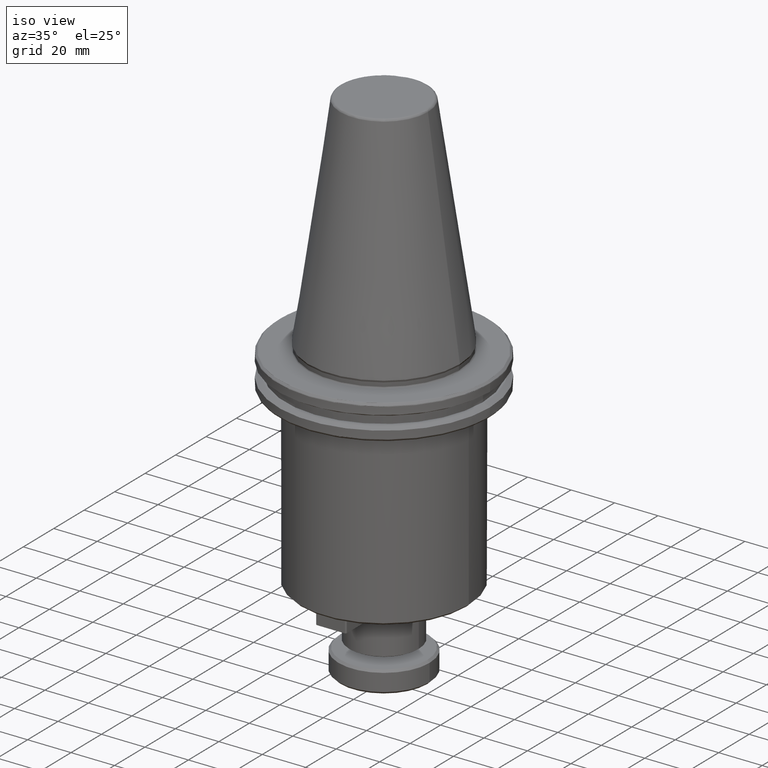
[diagram: clean part render]
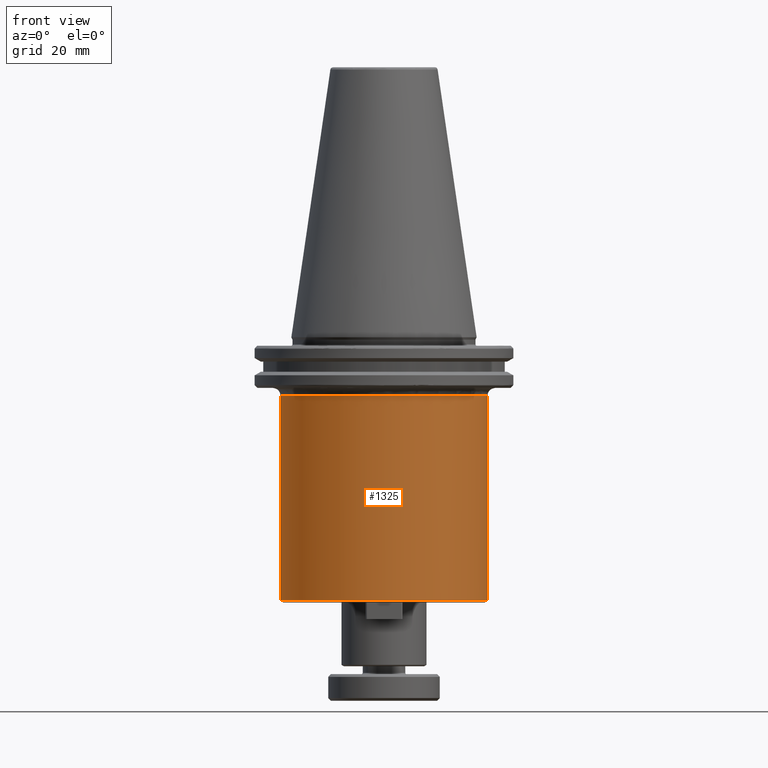
[diagram: tour spotlight — one face highlighted and labeled with its STEP entity id]
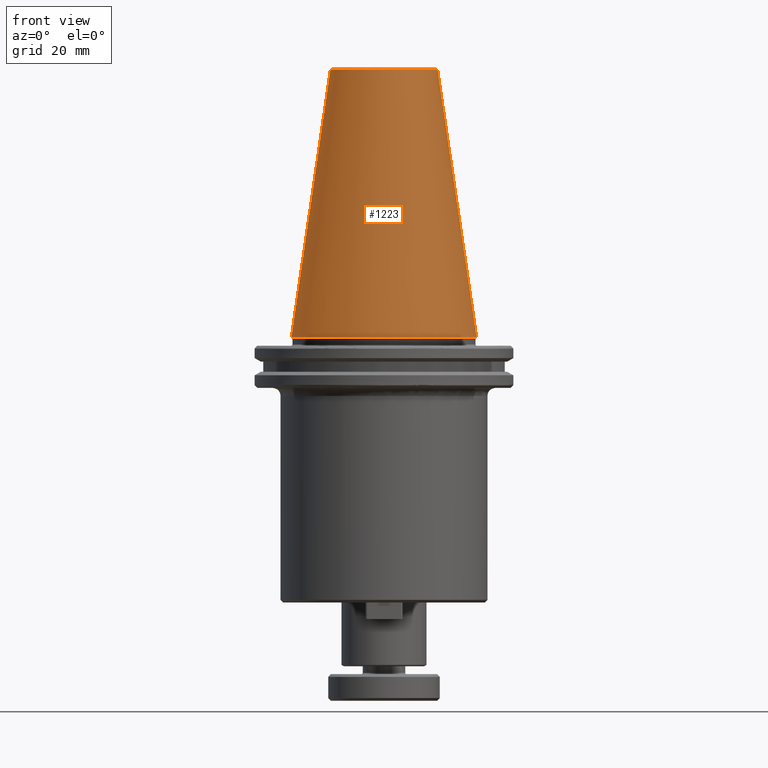
[diagram: tour spotlight — one face highlighted and labeled with its STEP entity id]
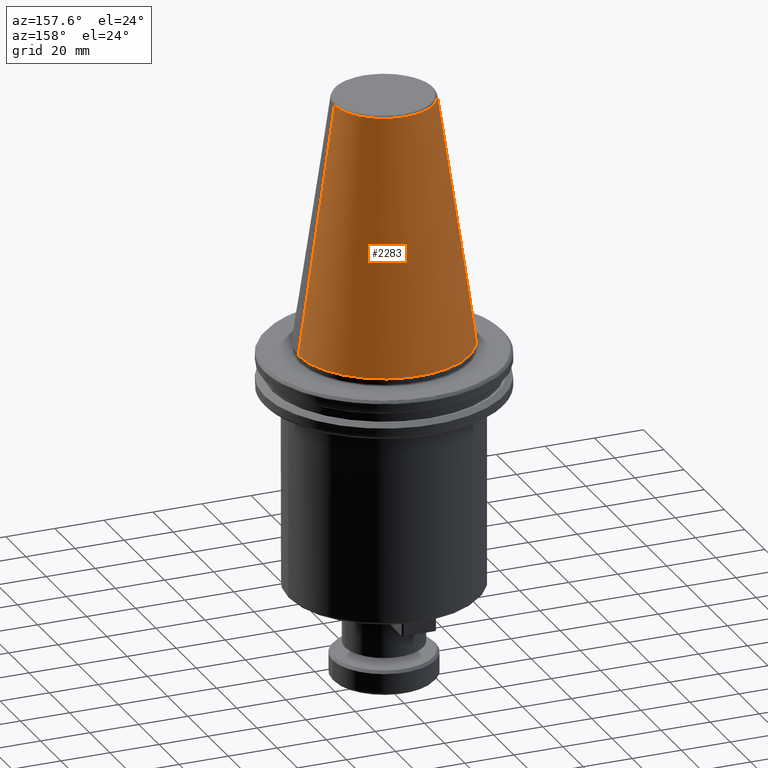
[diagram: tour spotlight — one face highlighted and labeled with its STEP entity id]
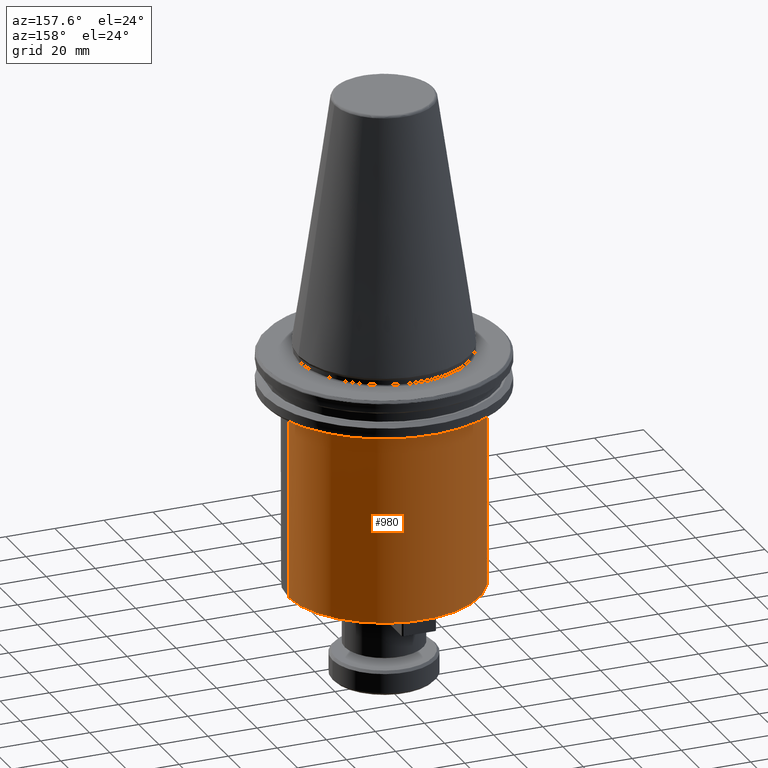
[diagram: tour spotlight — one face highlighted and labeled with its STEP entity id]
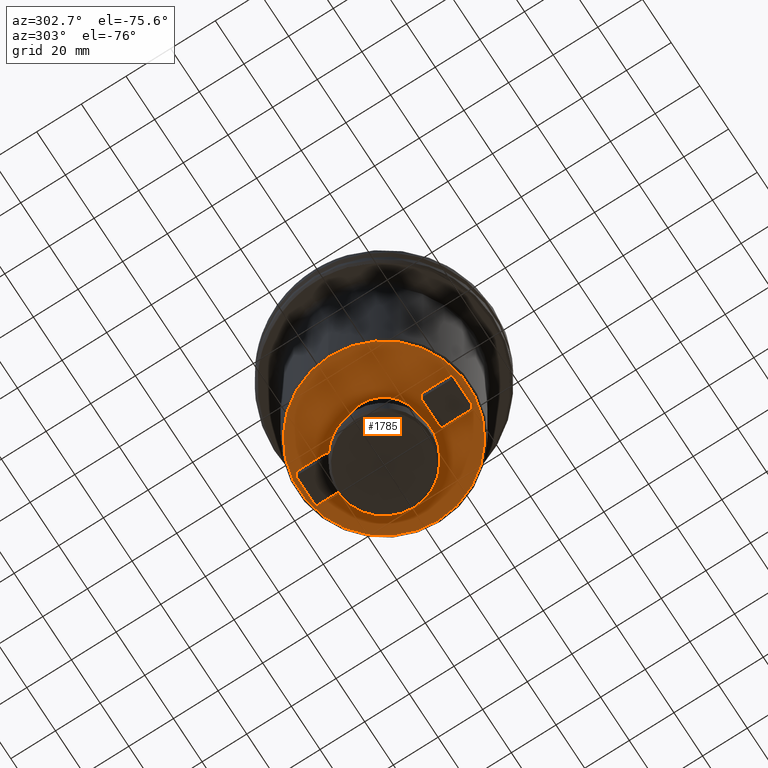
[diagram: tour spotlight — one face highlighted and labeled with its STEP entity id]
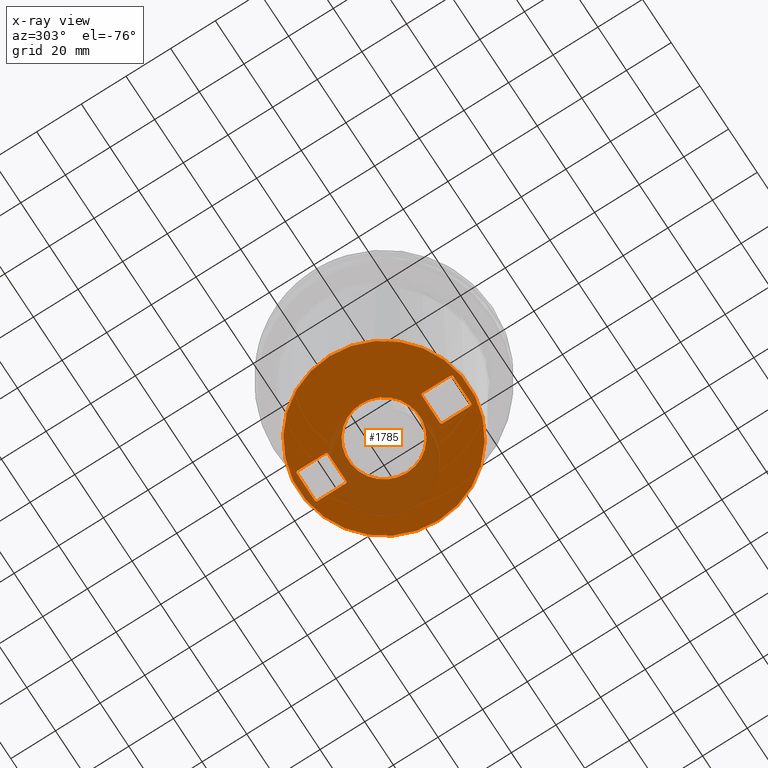
[diagram: x-ray of the same camera — body ghosted, this tour face saturated]
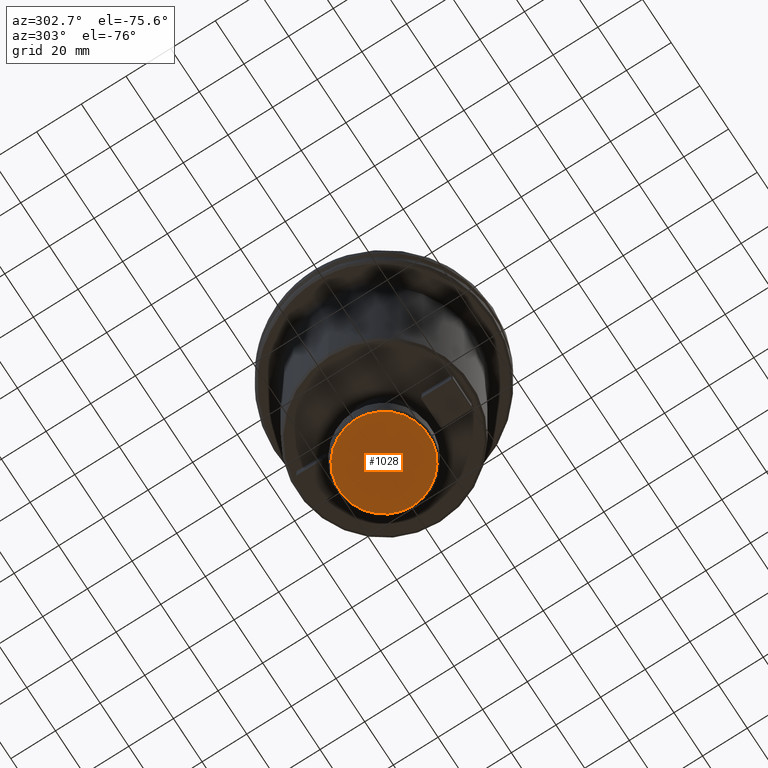
[diagram: tour spotlight — one face highlighted and labeled with its STEP entity id]
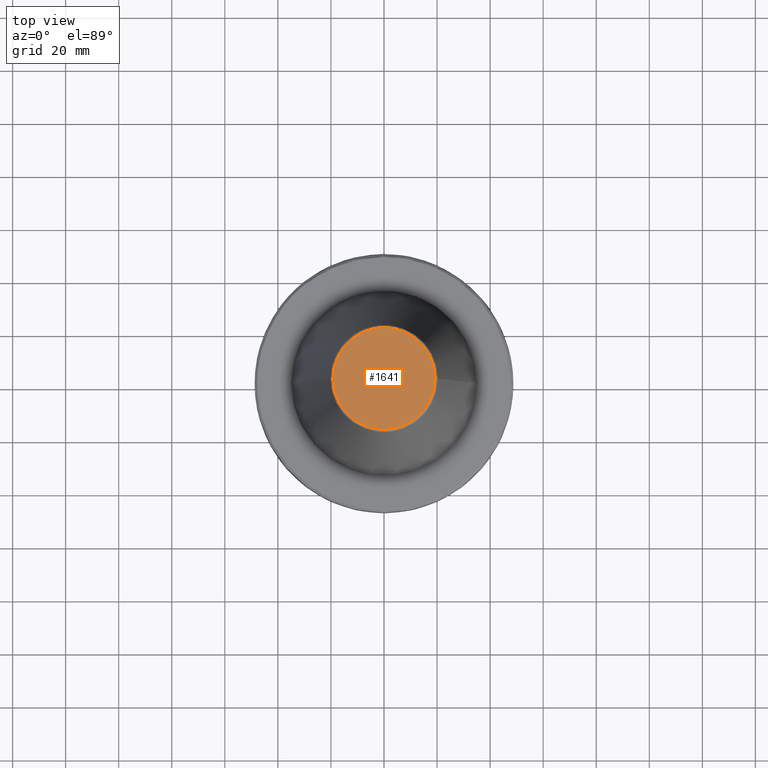
[diagram: tour spotlight — one face highlighted and labeled with its STEP entity id]
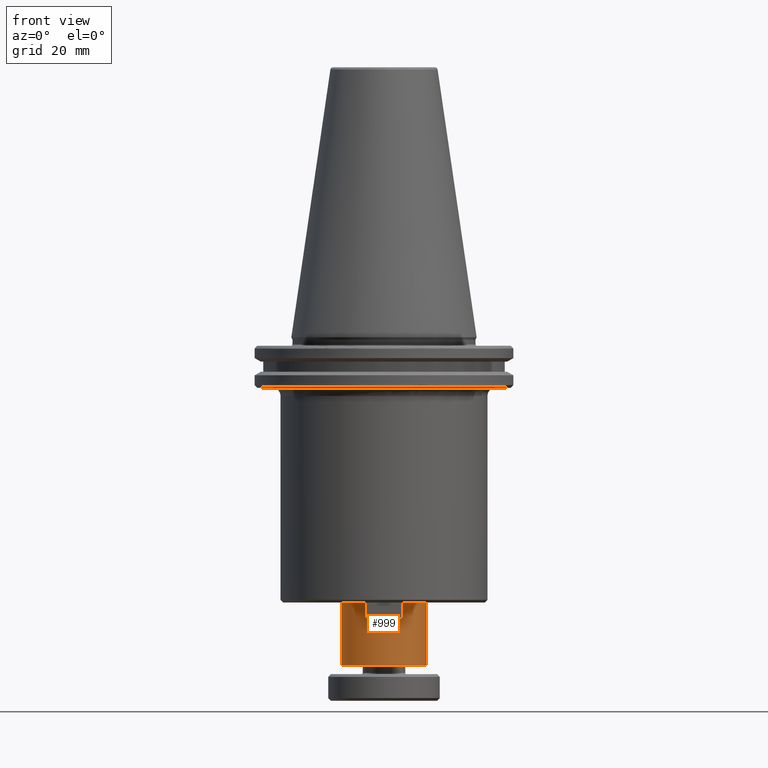
[diagram: tour spotlight — one face highlighted and labeled with its STEP entity id]
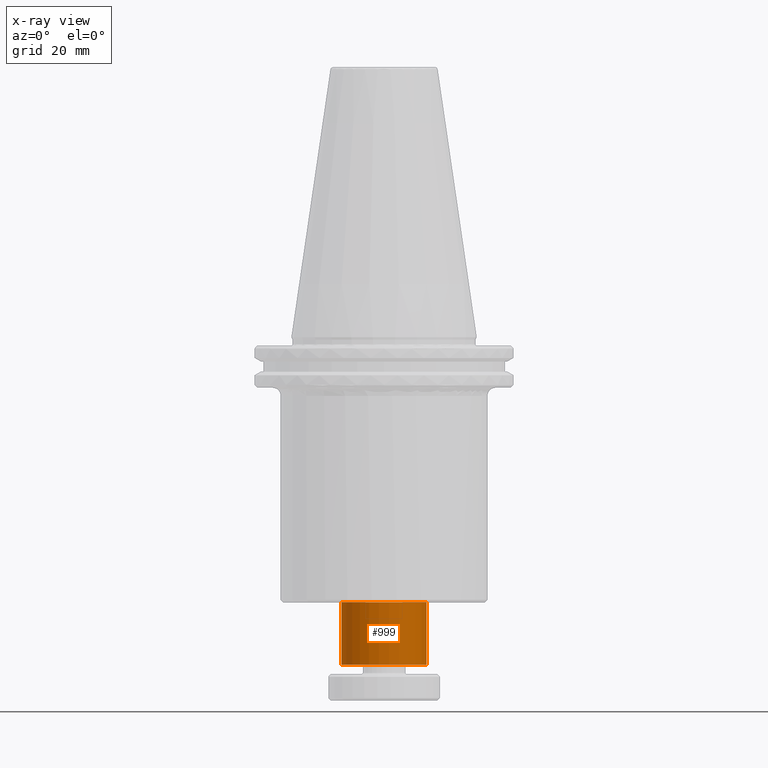
[diagram: x-ray of the same camera — body ghosted, this tour face saturated]
A machine part: a face-by-face anatomy tour. The part has 102 B-rep faces; the first image is the clean iso view, then the 8 largest visible faces are spotlighted one at a time (largest first), each with its STEP entity span.

Face 1 — front view, entity #1325. In plain terms, the highlighted cylindrical surface (partial cylindrical patch) has radius 39 mm, axis along (0, 0, 1).
Definition (entity closure, byte-faithful):
#214 = AXIS2_PLACEMENT_3D ( 'NONE', #2904, #2786, #3258 ) ;
#220 = DIRECTION ( 'NONE',  ( -1.000000000000000000, 0.0000000000000000000, 0.0000000000000000000 ) ) ;
#223 = DIRECTION ( 'NONE',  ( 0.0000000000000000000, 0.0000000000000000000, -1.000000000000000000 ) ) ;
#241 = CARTESIAN_POINT ( 'NONE',  ( 0.0000000000000000000, 0.0000000000000000000, -22.10000000000000500 ) ) ;
#343 = EDGE_CURVE ( 'NONE', #617, #1266, #4227, .T. ) ;
#392 = DIRECTION ( 'NONE',  ( 1.000000000000000000, 0.0000000000000000000, 0.0000000000000000000 ) ) ;
#405 = DIRECTION ( 'NONE',  ( 0.0000000000000000000, 0.0000000000000000000, -1.000000000000000000 ) ) ;
#617 = VERTEX_POINT ( 'NONE', #4277 ) ;
#706 = LINE ( 'NONE', #3058, #1088 ) ;
#791 = AXIS2_PLACEMENT_3D ( 'NONE', #2489, #405, #2854 ) ;
#835 = ORIENTED_EDGE ( 'NONE', *, *, #2126, .T. ) ;
#850 = CARTESIAN_POINT ( 'NONE',  ( -37.69999999999999600, -9.985489472229200900, -22.10000000000000500 ) ) ;
#1021 = ORIENTED_EDGE ( 'NONE', *, *, #343, .T. ) ;
#1088 = VECTOR ( 'NONE', #4374, 1000.000000000000000 ) ;
#1103 = DIRECTION ( 'NONE',  ( 1.000000000000000000, 0.0000000000000000000, 0.0000000000000000000 ) ) ;
#1116 = VERTEX_POINT ( 'NONE', #850 ) ;
#1117 = DIRECTION ( 'NONE',  ( -0.0000000000000000000, -0.0000000000000000000, -1.000000000000000000 ) ) ;
#1119 = CARTESIAN_POINT ( 'NONE',  ( 0.0000000000000000000, 0.0000000000000000000, -22.10000000000000500 ) ) ;
#1205 = EDGE_LOOP ( 'NONE', ( #3059, #1021, #2103, #835, #4224, #2544 ) ) ;
#1208 = CARTESIAN_POINT ( 'NONE',  ( -39.00000000000000000, 4.776122516674677900E-015, -22.10000000000000500 ) ) ;
#1266 = VERTEX_POINT ( 'NONE', #2108 ) ;
#1325 = ADVANCED_FACE ( 'NONE', ( #2048 ), #2101, .T. ) ;
#1342 = EDGE_CURVE ( 'NONE', #1116, #3607, #2091, .T. ) ;
#1555 = AXIS2_PLACEMENT_3D ( 'NONE', #1119, #1117, #1103 ) ;
#1702 = VERTEX_POINT ( 'NONE', #4246 ) ;
#1742 = VECTOR ( 'NONE', #2590, 1000.000000000000000 ) ;
#2004 = EDGE_CURVE ( 'NONE', #1702, #1116, #3627, .T. ) ;
#2048 = FACE_OUTER_BOUND ( 'NONE', #1205, .T. ) ;
#2091 = CIRCLE ( 'NONE', #791, 39.00000000000000000 ) ;
#2101 = CYLINDRICAL_SURFACE ( 'NONE', #3099, 39.00000000000000000 ) ;
#2103 = ORIENTED_EDGE ( 'NONE', *, *, #4222, .T. ) ;
#2108 = CARTESIAN_POINT ( 'NONE',  ( 39.00000000000000000, 0.0000000000000000000, -99.00000000000000000 ) ) ;
#2126 = EDGE_CURVE ( 'NONE', #3963, #1702, #4102, .T. ) ;
#2470 = CARTESIAN_POINT ( 'NONE',  ( 0.0000000000000000000, 0.0000000000000000000, 0.0000000000000000000 ) ) ;
#2489 = CARTESIAN_POINT ( 'NONE',  ( 0.0000000000000000000, 0.0000000000000000000, -22.10000000000000500 ) ) ;
#2544 = ORIENTED_EDGE ( 'NONE', *, *, #1342, .T. ) ;
#2590 = DIRECTION ( 'NONE',  ( 0.0000000000000000000, 0.0000000000000000000, 1.000000000000000000 ) ) ;
#2786 = DIRECTION ( 'NONE',  ( 0.0000000000000000000, 0.0000000000000000000, 1.000000000000000000 ) ) ;
#2851 = CARTESIAN_POINT ( 'NONE',  ( 39.00000000000000000, 0.0000000000000000000, -22.10000000000000500 ) ) ;
#2854 = DIRECTION ( 'NONE',  ( -1.000000000000000000, 0.0000000000000000000, 0.0000000000000000000 ) ) ;
#2904 = CARTESIAN_POINT ( 'NONE',  ( 0.0000000000000000000, 0.0000000000000000000, -99.00000000000000000 ) ) ;
#3058 = CARTESIAN_POINT ( 'NONE',  ( 39.00000000000000000, 0.0000000000000000000, 0.0000000000000000000 ) ) ;
#3059 = ORIENTED_EDGE ( 'NONE', *, *, #3364, .F. ) ;
#3099 = AXIS2_PLACEMENT_3D ( 'NONE', #2470, #4144, #392 ) ;
#3258 = DIRECTION ( 'NONE',  ( 1.000000000000000000, 0.0000000000000000000, 0.0000000000000000000 ) ) ;
#3293 = CARTESIAN_POINT ( 'NONE',  ( -39.00000000000000000, 4.776122516674677900E-015, 0.0000000000000000000 ) ) ;
#3364 = EDGE_CURVE ( 'NONE', #617, #3607, #4136, .T. ) ;
#3607 = VERTEX_POINT ( 'NONE', #1208 ) ;
#3627 = CIRCLE ( 'NONE', #1555, 39.00000000000000000 ) ;
#3812 = AXIS2_PLACEMENT_3D ( 'NONE', #241, #223, #220 ) ;
#3963 = VERTEX_POINT ( 'NONE', #2851 ) ;
#4102 = CIRCLE ( 'NONE', #3812, 39.00000000000000000 ) ;
#4136 = LINE ( 'NONE', #3293, #1742 ) ;
#4144 = DIRECTION ( 'NONE',  ( 0.0000000000000000000, 0.0000000000000000000, 1.000000000000000000 ) ) ;
#4222 = EDGE_CURVE ( 'NONE', #1266, #3963, #706, .T. ) ;
#4224 = ORIENTED_EDGE ( 'NONE', *, *, #2004, .T. ) ;
#4227 = CIRCLE ( 'NONE', #214, 39.00000000000000000 ) ;
#4246 = CARTESIAN_POINT ( 'NONE',  ( 36.82224191979624800, -12.85000000000000300, -22.10000000000000500 ) ) ;
#4277 = CARTESIAN_POINT ( 'NONE',  ( -39.00000000000000000, 4.776122516674677900E-015, -99.00000000000000000 ) ) ;
#4374 = DIRECTION ( 'NONE',  ( 0.0000000000000000000, 0.0000000000000000000, 1.000000000000000000 ) ) ;

Face 2 — front view, entity #1223. In plain terms, the highlighted conical surface has half-angle 8.297 deg.
Definition (entity closure, byte-faithful):
#129 = CARTESIAN_POINT ( 'NONE',  ( -34.92499999999999700, 0.0000000000000000000, -1.387778780781445700E-014 ) ) ;
#137 = CARTESIAN_POINT ( 'NONE',  ( 0.0000000000000000000, 0.0000000000000000000, 0.0000000000000000000 ) ) ;
#185 = CARTESIAN_POINT ( 'NONE',  ( 34.92499999999999700, 4.277078946022130900E-015, -1.387778780781445700E-014 ) ) ;
#205 = VERTEX_POINT ( 'NONE', #1721 ) ;
#246 = LINE ( 'NONE', #185, #721 ) ;
#352 = CIRCLE ( 'NONE', #2482, 34.92500000000000400 ) ;
#363 = ORIENTED_EDGE ( 'NONE', *, *, #1080, .T. ) ;
#407 = EDGE_CURVE ( 'NONE', #205, #1794, #1806, .T. ) ;
#492 = DIRECTION ( 'NONE',  ( 1.000000000000000000, 0.0000000000000000000, 6.250708212905391100E-017 ) ) ;
#546 = EDGE_CURVE ( 'NONE', #2553, #1582, #352, .T. ) ;
#634 = ORIENTED_EDGE ( 'NONE', *, *, #407, .T. ) ;
#694 = EDGE_CURVE ( 'NONE', #205, #2553, #246, .T. ) ;
#721 = VECTOR ( 'NONE', #1557, 1000.000000000000000 ) ;
#790 = ORIENTED_EDGE ( 'NONE', *, *, #694, .F. ) ;
#890 = CARTESIAN_POINT ( 'NONE',  ( 34.92499999999999700, 4.277078946022130900E-015, 0.0000000000000000000 ) ) ;
#996 = EDGE_LOOP ( 'NONE', ( #790, #634, #363, #2439 ) ) ;
#1080 = EDGE_CURVE ( 'NONE', #1794, #1582, #1375, .T. ) ;
#1223 = ADVANCED_FACE ( 'NONE', ( #1538 ), #1855, .T. ) ;
#1375 = LINE ( 'NONE', #129, #1429 ) ;
#1429 = VECTOR ( 'NONE', #1513, 1000.000000000000000 ) ;
#1500 = DIRECTION ( 'NONE',  ( -1.000000000000000000, 0.0000000000000000000, 0.0000000000000000000 ) ) ;
#1513 = DIRECTION ( 'NONE',  ( -0.1443082272673069400, 0.0000000000000000000, -0.9895327864921743500 ) ) ;
#1525 = AXIS2_PLACEMENT_3D ( 'NONE', #1992, #2587, #1500 ) ;
#1538 = FACE_OUTER_BOUND ( 'NONE', #996, .T. ) ;
#1557 = DIRECTION ( 'NONE',  ( 0.1443082272673069400, 1.767266086135362400E-017, -0.9895327864921743500 ) ) ;
#1582 = VERTEX_POINT ( 'NONE', #2620 ) ;
#1721 = CARTESIAN_POINT ( 'NONE',  ( 20.21110778703758000, 3.376112895941951000E-015, 100.8943082272673000 ) ) ;
#1794 = VERTEX_POINT ( 'NONE', #3264 ) ;
#1806 = CIRCLE ( 'NONE', #1525, 20.21110778703758000 ) ;
#1855 = CONICAL_SURFACE ( 'NONE', #3080, 34.92499999999999700, 0.1448138465474189400 ) ;
#1992 = CARTESIAN_POINT ( 'NONE',  ( 0.0000000000000000000, 0.0000000000000000000, 100.8943082272673000 ) ) ;
#2316 = DIRECTION ( 'NONE',  ( -1.000000000000000000, 0.0000000000000000000, 0.0000000000000000000 ) ) ;
#2439 = ORIENTED_EDGE ( 'NONE', *, *, #546, .F. ) ;
#2482 = AXIS2_PLACEMENT_3D ( 'NONE', #137, #2575, #492 ) ;
#2553 = VERTEX_POINT ( 'NONE', #890 ) ;
#2575 = DIRECTION ( 'NONE',  ( -0.0000000000000000000, -0.0000000000000000000, -1.000000000000000000 ) ) ;
#2587 = DIRECTION ( 'NONE',  ( 0.0000000000000000000, 0.0000000000000000000, -1.000000000000000000 ) ) ;
#2620 = CARTESIAN_POINT ( 'NONE',  ( -34.92499999999999700, 0.0000000000000000000, 0.0000000000000000000 ) ) ;
#3080 = AXIS2_PLACEMENT_3D ( 'NONE', #3694, #4024, #2316 ) ;
#3264 = CARTESIAN_POINT ( 'NONE',  ( -20.21110778703758000, 0.0000000000000000000, 100.8943082272673000 ) ) ;
#3694 = CARTESIAN_POINT ( 'NONE',  ( 0.0000000000000000000, 0.0000000000000000000, -1.387778780781445700E-014 ) ) ;
#4024 = DIRECTION ( 'NONE',  ( 0.0000000000000000000, 0.0000000000000000000, -1.000000000000000000 ) ) ;

Face 3 — auxiliary view, entity #2283. In plain terms, the highlighted conical surface has half-angle 8.297 deg.
Definition (entity closure, byte-faithful):
#129 = CARTESIAN_POINT ( 'NONE',  ( -34.92499999999999700, 0.0000000000000000000, -1.387778780781445700E-014 ) ) ;
#170 = DIRECTION ( 'NONE',  ( 0.0000000000000000000, 0.0000000000000000000, -1.000000000000000000 ) ) ;
#185 = CARTESIAN_POINT ( 'NONE',  ( 34.92499999999999700, 4.277078946022130900E-015, -1.387778780781445700E-014 ) ) ;
#205 = VERTEX_POINT ( 'NONE', #1721 ) ;
#246 = LINE ( 'NONE', #185, #721 ) ;
#567 = ORIENTED_EDGE ( 'NONE', *, *, #694, .T. ) ;
#694 = EDGE_CURVE ( 'NONE', #205, #2553, #246, .T. ) ;
#721 = VECTOR ( 'NONE', #1557, 1000.000000000000000 ) ;
#890 = CARTESIAN_POINT ( 'NONE',  ( 34.92499999999999700, 4.277078946022130900E-015, 0.0000000000000000000 ) ) ;
#1080 = EDGE_CURVE ( 'NONE', #1794, #1582, #1375, .T. ) ;
#1276 = AXIS2_PLACEMENT_3D ( 'NONE', #3653, #1553, #3979 ) ;
#1375 = LINE ( 'NONE', #129, #1429 ) ;
#1429 = VECTOR ( 'NONE', #1513, 1000.000000000000000 ) ;
#1513 = DIRECTION ( 'NONE',  ( -0.1443082272673069400, 0.0000000000000000000, -0.9895327864921743500 ) ) ;
#1540 = CARTESIAN_POINT ( 'NONE',  ( 0.0000000000000000000, 0.0000000000000000000, -1.387778780781445700E-014 ) ) ;
#1553 = DIRECTION ( 'NONE',  ( -0.0000000000000000000, -0.0000000000000000000, -1.000000000000000000 ) ) ;
#1557 = DIRECTION ( 'NONE',  ( 0.1443082272673069400, 1.767266086135362400E-017, -0.9895327864921743500 ) ) ;
#1582 = VERTEX_POINT ( 'NONE', #2620 ) ;
#1662 = DIRECTION ( 'NONE',  ( 0.0000000000000000000, 0.0000000000000000000, -1.000000000000000000 ) ) ;
#1721 = CARTESIAN_POINT ( 'NONE',  ( 20.21110778703758000, 3.376112895941951000E-015, 100.8943082272673000 ) ) ;
#1794 = VERTEX_POINT ( 'NONE', #3264 ) ;
#2082 = FACE_OUTER_BOUND ( 'NONE', #3868, .T. ) ;
#2281 = CIRCLE ( 'NONE', #3973, 20.21110778703758000 ) ;
#2283 = ADVANCED_FACE ( 'NONE', ( #2082 ), #4359, .T. ) ;
#2553 = VERTEX_POINT ( 'NONE', #890 ) ;
#2620 = CARTESIAN_POINT ( 'NONE',  ( -34.92499999999999700, 0.0000000000000000000, 0.0000000000000000000 ) ) ;
#2697 = DIRECTION ( 'NONE',  ( -1.000000000000000000, 0.0000000000000000000, 0.0000000000000000000 ) ) ;
#3196 = ORIENTED_EDGE ( 'NONE', *, *, #3422, .F. ) ;
#3251 = ORIENTED_EDGE ( 'NONE', *, *, #1080, .F. ) ;
#3264 = CARTESIAN_POINT ( 'NONE',  ( -20.21110778703758000, 0.0000000000000000000, 100.8943082272673000 ) ) ;
#3285 = AXIS2_PLACEMENT_3D ( 'NONE', #1540, #170, #2697 ) ;
#3422 = EDGE_CURVE ( 'NONE', #1582, #2553, #4032, .T. ) ;
#3653 = CARTESIAN_POINT ( 'NONE',  ( 0.0000000000000000000, 0.0000000000000000000, 0.0000000000000000000 ) ) ;
#3761 = CARTESIAN_POINT ( 'NONE',  ( 0.0000000000000000000, 0.0000000000000000000, 100.8943082272673000 ) ) ;
#3868 = EDGE_LOOP ( 'NONE', ( #4431, #567, #3196, #3251 ) ) ;
#3973 = AXIS2_PLACEMENT_3D ( 'NONE', #3761, #1662, #4072 ) ;
#3979 = DIRECTION ( 'NONE',  ( 1.000000000000000000, 0.0000000000000000000, 6.250708212905391100E-017 ) ) ;
#4032 = CIRCLE ( 'NONE', #1276, 34.92500000000000400 ) ;
#4072 = DIRECTION ( 'NONE',  ( -1.000000000000000000, 0.0000000000000000000, 0.0000000000000000000 ) ) ;
#4305 = EDGE_CURVE ( 'NONE', #1794, #205, #2281, .T. ) ;
#4359 = CONICAL_SURFACE ( 'NONE', #3285, 34.92499999999999700, 0.1448138465474189400 ) ;
#4431 = ORIENTED_EDGE ( 'NONE', *, *, #4305, .T. ) ;

Face 4 — auxiliary view, entity #980. In plain terms, the highlighted cylindrical surface (partial cylindrical patch) has radius 39 mm, axis along (0, 0, 1).
Definition (entity closure, byte-faithful):
#196 = CIRCLE ( 'NONE', #3141, 39.00000000000000000 ) ;
#444 = DIRECTION ( 'NONE',  ( 0.0000000000000000000, 0.0000000000000000000, 1.000000000000000000 ) ) ;
#494 = EDGE_CURVE ( 'NONE', #3607, #3300, #196, .T. ) ;
#617 = VERTEX_POINT ( 'NONE', #4277 ) ;
#625 = EDGE_LOOP ( 'NONE', ( #4421, #3615, #3063, #1594, #2143, #1487 ) ) ;
#706 = LINE ( 'NONE', #3058, #1088 ) ;
#710 = DIRECTION ( 'NONE',  ( 0.0000000000000000000, 0.0000000000000000000, 1.000000000000000000 ) ) ;
#794 = DIRECTION ( 'NONE',  ( 0.0000000000000000000, 0.0000000000000000000, -1.000000000000000000 ) ) ;
#935 = CARTESIAN_POINT ( 'NONE',  ( 0.0000000000000000000, 0.0000000000000000000, -22.10000000000000500 ) ) ;
#980 = ADVANCED_FACE ( 'NONE', ( #1163 ), #1256, .T. ) ;
#1088 = VECTOR ( 'NONE', #4374, 1000.000000000000000 ) ;
#1163 = FACE_OUTER_BOUND ( 'NONE', #625, .T. ) ;
#1208 = CARTESIAN_POINT ( 'NONE',  ( -39.00000000000000000, 4.776122516674677900E-015, -22.10000000000000500 ) ) ;
#1256 = CYLINDRICAL_SURFACE ( 'NONE', #3233, 39.00000000000000000 ) ;
#1266 = VERTEX_POINT ( 'NONE', #2108 ) ;
#1275 = DIRECTION ( 'NONE',  ( -1.000000000000000000, 0.0000000000000000000, 0.0000000000000000000 ) ) ;
#1487 = ORIENTED_EDGE ( 'NONE', *, *, #4222, .F. ) ;
#1517 = CARTESIAN_POINT ( 'NONE',  ( 0.0000000000000000000, 0.0000000000000000000, -22.10000000000000500 ) ) ;
#1530 = EDGE_CURVE ( 'NONE', #3300, #3297, #2644, .T. ) ;
#1562 = AXIS2_PLACEMENT_3D ( 'NONE', #1517, #3945, #1875 ) ;
#1594 = ORIENTED_EDGE ( 'NONE', *, *, #1530, .T. ) ;
#1742 = VECTOR ( 'NONE', #2590, 1000.000000000000000 ) ;
#1819 = CARTESIAN_POINT ( 'NONE',  ( 0.0000000000000000000, 0.0000000000000000000, 0.0000000000000000000 ) ) ;
#1875 = DIRECTION ( 'NONE',  ( 1.000000000000000000, 0.0000000000000000000, 0.0000000000000000000 ) ) ;
#2017 = CIRCLE ( 'NONE', #3345, 39.00000000000000000 ) ;
#2075 = AXIS2_PLACEMENT_3D ( 'NONE', #2818, #710, #3171 ) ;
#2108 = CARTESIAN_POINT ( 'NONE',  ( 39.00000000000000000, 0.0000000000000000000, -99.00000000000000000 ) ) ;
#2143 = ORIENTED_EDGE ( 'NONE', *, *, #2796, .T. ) ;
#2590 = DIRECTION ( 'NONE',  ( 0.0000000000000000000, 0.0000000000000000000, 1.000000000000000000 ) ) ;
#2644 = CIRCLE ( 'NONE', #1562, 39.00000000000000000 ) ;
#2796 = EDGE_CURVE ( 'NONE', #3297, #3963, #2017, .T. ) ;
#2818 = CARTESIAN_POINT ( 'NONE',  ( 0.0000000000000000000, 0.0000000000000000000, -99.00000000000000000 ) ) ;
#2851 = CARTESIAN_POINT ( 'NONE',  ( 39.00000000000000000, 0.0000000000000000000, -22.10000000000000500 ) ) ;
#2908 = CIRCLE ( 'NONE', #2075, 39.00000000000000000 ) ;
#2911 = CARTESIAN_POINT ( 'NONE',  ( 0.0000000000000000000, 0.0000000000000000000, -22.10000000000000500 ) ) ;
#3058 = CARTESIAN_POINT ( 'NONE',  ( 39.00000000000000000, 0.0000000000000000000, 0.0000000000000000000 ) ) ;
#3063 = ORIENTED_EDGE ( 'NONE', *, *, #494, .T. ) ;
#3073 = EDGE_CURVE ( 'NONE', #1266, #617, #2908, .T. ) ;
#3141 = AXIS2_PLACEMENT_3D ( 'NONE', #2911, #794, #3253 ) ;
#3171 = DIRECTION ( 'NONE',  ( 1.000000000000000000, 0.0000000000000000000, 0.0000000000000000000 ) ) ;
#3231 = DIRECTION ( 'NONE',  ( 1.000000000000000000, 0.0000000000000000000, 0.0000000000000000000 ) ) ;
#3233 = AXIS2_PLACEMENT_3D ( 'NONE', #1819, #444, #3231 ) ;
#3249 = CARTESIAN_POINT ( 'NONE',  ( 36.82224191979624800, 12.84999999999999600, -22.10000000000000500 ) ) ;
#3253 = DIRECTION ( 'NONE',  ( -1.000000000000000000, 0.0000000000000000000, 0.0000000000000000000 ) ) ;
#3293 = CARTESIAN_POINT ( 'NONE',  ( -39.00000000000000000, 4.776122516674677900E-015, 0.0000000000000000000 ) ) ;
#3297 = VERTEX_POINT ( 'NONE', #3249 ) ;
#3300 = VERTEX_POINT ( 'NONE', #3910 ) ;
#3345 = AXIS2_PLACEMENT_3D ( 'NONE', #935, #3387, #1275 ) ;
#3364 = EDGE_CURVE ( 'NONE', #617, #3607, #4136, .T. ) ;
#3387 = DIRECTION ( 'NONE',  ( 0.0000000000000000000, 0.0000000000000000000, -1.000000000000000000 ) ) ;
#3607 = VERTEX_POINT ( 'NONE', #1208 ) ;
#3615 = ORIENTED_EDGE ( 'NONE', *, *, #3364, .T. ) ;
#3910 = CARTESIAN_POINT ( 'NONE',  ( -37.69999999999999600, 9.985489472229208000, -22.10000000000000500 ) ) ;
#3945 = DIRECTION ( 'NONE',  ( -0.0000000000000000000, -0.0000000000000000000, -1.000000000000000000 ) ) ;
#3963 = VERTEX_POINT ( 'NONE', #2851 ) ;
#4136 = LINE ( 'NONE', #3293, #1742 ) ;
#4222 = EDGE_CURVE ( 'NONE', #1266, #3963, #706, .T. ) ;
#4277 = CARTESIAN_POINT ( 'NONE',  ( -39.00000000000000000, 4.776122516674677900E-015, -99.00000000000000000 ) ) ;
#4374 = DIRECTION ( 'NONE',  ( 0.0000000000000000000, 0.0000000000000000000, 1.000000000000000000 ) ) ;
#4421 = ORIENTED_EDGE ( 'NONE', *, *, #3073, .T. ) ;

Face 5 — auxiliary view, entity #1785. An x-ray twin of the same camera follows (body ghosted, this face saturated) — the face is partly hidden behind the body. In plain terms, the highlighted planar face has unit normal (0, 0, -1).
Definition (entity closure, byte-faithful):
#18 = VECTOR ( 'NONE', #2064, 1000.000000000000000 ) ;
#24 = VERTEX_POINT ( 'NONE', #2403 ) ;
#36 = VECTOR ( 'NONE', #1512, 1000.000000000000000 ) ;
#67 = ORIENTED_EDGE ( 'NONE', *, *, #1174, .T. ) ;
#71 = CIRCLE ( 'NONE', #259, 16.00000000000000000 ) ;
#78 = AXIS2_PLACEMENT_3D ( 'NONE', #1552, #466, #811 ) ;
#82 = EDGE_CURVE ( 'NONE', #2488, #1918, #71, .T. ) ;
#88 = EDGE_CURVE ( 'NONE', #1918, #2488, #685, .T. ) ;
#127 = LINE ( 'NONE', #1670, #36 ) ;
#155 = CARTESIAN_POINT ( 'NONE',  ( 6.999999999999992000, 21.50000000000000000, -100.0000000000000000 ) ) ;
#157 = EDGE_CURVE ( 'NONE', #1215, #4232, #846, .T. ) ;
#172 = CARTESIAN_POINT ( 'NONE',  ( 6.999999999999992000, -38.00000000000000000, -100.0000000000000000 ) ) ;
#192 = CIRCLE ( 'NONE', #3556, 38.00000000000000000 ) ;
#197 = CARTESIAN_POINT ( 'NONE',  ( 6.999999999999995600, -21.50000000000002800, -100.0000000000000000 ) ) ;
#204 = ORIENTED_EDGE ( 'NONE', *, *, #2487, .T. ) ;
#213 = DIRECTION ( 'NONE',  ( 0.7071067811865474600, -0.7071067811865474600, -0.0000000000000000000 ) ) ;
#235 = CARTESIAN_POINT ( 'NONE',  ( 6.499999999999964500, 35.00000000000000000, -100.0000000000000000 ) ) ;
#239 = ORIENTED_EDGE ( 'NONE', *, *, #3055, .T. ) ;
#259 = AXIS2_PLACEMENT_3D ( 'NONE', #3796, #1366, #1351 ) ;
#292 = VECTOR ( 'NONE', #4427, 1000.000000000000100 ) ;
#340 = VECTOR ( 'NONE', #4140, 1000.000000000000000 ) ;
#362 = CARTESIAN_POINT ( 'NONE',  ( 6.999999999999999100, -21.50000000000003200, -100.0000000000000000 ) ) ;
#375 = CARTESIAN_POINT ( 'NONE',  ( -6.499999999999995600, -21.00000000000000400, -100.0000000000000000 ) ) ;
#420 = EDGE_CURVE ( 'NONE', #1969, #1688, #767, .T. ) ;
#466 = DIRECTION ( 'NONE',  ( 0.0000000000000000000, 0.0000000000000000000, 1.000000000000000000 ) ) ;
#468 = VECTOR ( 'NONE', #1532, 1000.000000000000000 ) ;
#479 = EDGE_CURVE ( 'NONE', #3576, #1866, #127, .T. ) ;
#511 = LINE ( 'NONE', #172, #468 ) ;
#512 = DIRECTION ( 'NONE',  ( -0.7071067811865474600, 0.7071067811865474600, -0.0000000000000000000 ) ) ;
#531 = EDGE_CURVE ( 'NONE', #2941, #1207, #192, .T. ) ;
#584 = VERTEX_POINT ( 'NONE', #1172 ) ;
#603 = CARTESIAN_POINT ( 'NONE',  ( -6.500000000000020400, 35.00000000000000000, -100.0000000000000000 ) ) ;
#622 = ORIENTED_EDGE ( 'NONE', *, *, #157, .T. ) ;
#639 = EDGE_CURVE ( 'NONE', #2380, #2044, #511, .T. ) ;
#675 = LINE ( 'NONE', #2341, #3438 ) ;
#685 = CIRCLE ( 'NONE', #78, 16.00000000000000000 ) ;
#759 = AXIS2_PLACEMENT_3D ( 'NONE', #3348, #3340, #3324 ) ;
#767 = LINE ( 'NONE', #3408, #18 ) ;
#803 = DIRECTION ( 'NONE',  ( 0.0000000000000000000, -0.0000000000000000000, 1.000000000000000000 ) ) ;
#805 = CARTESIAN_POINT ( 'NONE',  ( 6.999999999999997300, 34.49999999999997200, -100.0000000000000000 ) ) ;
#811 = DIRECTION ( 'NONE',  ( 1.000000000000000000, 0.0000000000000000000, 0.0000000000000000000 ) ) ;
#846 = LINE ( 'NONE', #3823, #1879 ) ;
#868 = AXIS2_PLACEMENT_3D ( 'NONE', #3306, #3246, #3236 ) ;
#924 = DIRECTION ( 'NONE',  ( -0.0000000000000000000, -1.000000000000000000, -0.0000000000000000000 ) ) ;
#985 = LINE ( 'NONE', #2031, #2630 ) ;
#1011 = ORIENTED_EDGE ( 'NONE', *, *, #1016, .T. ) ;
#1016 = EDGE_CURVE ( 'NONE', #1688, #2380, #1270, .T. ) ;
#1015 = DIRECTION ( 'NONE',  ( -1.000000000000000000, 0.0000000000000000000, -0.0000000000000000000 ) ) ;
#1056 = VERTEX_POINT ( 'NONE', #2938 ) ;
#1085 = LINE ( 'NONE', #3126, #292 ) ;
#1118 = EDGE_LOOP ( 'NONE', ( #2150, #2532, #2545, #1011, #2870, #239, #622, #2093 ) ) ;
#1147 = EDGE_CURVE ( 'NONE', #3526, #4217, #1433, .T. ) ;
#1172 = CARTESIAN_POINT ( 'NONE',  ( -6.999999999999994700, -34.49999999999997200, -100.0000000000000000 ) ) ;
#1174 = EDGE_CURVE ( 'NONE', #584, #1056, #1468, .T. ) ;
#1199 = CARTESIAN_POINT ( 'NONE',  ( 16.00000000000000000, 0.0000000000000000000, -100.0000000000000000 ) ) ;
#1207 = VERTEX_POINT ( 'NONE', #2656 ) ;
#1215 = VERTEX_POINT ( 'NONE', #235 ) ;
#1222 = VECTOR ( 'NONE', #4231, 1000.000000000000100 ) ;
#1270 = LINE ( 'NONE', #3908, #1222 ) ;
#1273 = VERTEX_POINT ( 'NONE', #375 ) ;
#1318 = ORIENTED_EDGE ( 'NONE', *, *, #2842, .T. ) ;
#1328 = DIRECTION ( 'NONE',  ( 0.7071067811865474600, -0.7071067811865474600, -0.0000000000000000000 ) ) ;
#1351 = DIRECTION ( 'NONE',  ( 1.000000000000000000, 0.0000000000000000000, 0.0000000000000000000 ) ) ;
#1366 = DIRECTION ( 'NONE',  ( 0.0000000000000000000, 0.0000000000000000000, 1.000000000000000000 ) ) ;
#1396 = CARTESIAN_POINT ( 'NONE',  ( 6.999999999999995600, -34.50000000000002800, -100.0000000000000000 ) ) ;
#1433 = LINE ( 'NONE', #197, #1493 ) ;
#1467 = EDGE_LOOP ( 'NONE', ( #2480, #2996, #1475, #1318, #204, #67, #3940, #3521 ) ) ;
#1468 = LINE ( 'NONE', #4309, #1573 ) ;
#1475 = ORIENTED_EDGE ( 'NONE', *, *, #3372, .T. ) ;
#1493 = VECTOR ( 'NONE', #512, 1000.000000000000100 ) ;
#1512 = DIRECTION ( 'NONE',  ( -0.0000000000000000000, -1.000000000000000000, -0.0000000000000000000 ) ) ;
#1531 = ORIENTED_EDGE ( 'NONE', *, *, #82, .T. ) ;
#1532 = DIRECTION ( 'NONE',  ( 0.0000000000000000000, 1.000000000000000000, 0.0000000000000000000 ) ) ;
#1552 = CARTESIAN_POINT ( 'NONE',  ( 0.0000000000000000000, 0.0000000000000000000, -100.0000000000000000 ) ) ;
#1573 = VECTOR ( 'NONE', #213, 1000.000000000000100 ) ;
#1592 = CARTESIAN_POINT ( 'NONE',  ( -6.499999999999967100, 20.99999999999999600, -100.0000000000000000 ) ) ;
#1627 = CARTESIAN_POINT ( 'NONE',  ( 6.499999999999967100, -20.99999999999999600, -100.0000000000000000 ) ) ;
#1670 = CARTESIAN_POINT ( 'NONE',  ( -6.999999999999995600, -38.00000000000000000, -100.0000000000000000 ) ) ;
#1688 = VERTEX_POINT ( 'NONE', #4317 ) ;
#1705 = CARTESIAN_POINT ( 'NONE',  ( -16.00000000000000000, 1.959434878635765100E-015, -100.0000000000000000 ) ) ;
#1779 = EDGE_CURVE ( 'NONE', #4232, #3576, #2823, .T. ) ;
#1785 = ADVANCED_FACE ( 'NONE', ( #3071, #2423, #3040, #3066 ), #3257, .T. ) ;
#1787 = LINE ( 'NONE', #2120, #2745 ) ;
#1835 = LINE ( 'NONE', #3819, #340 ) ;
#1866 = VERTEX_POINT ( 'NONE', #3145 ) ;
#1879 = VECTOR ( 'NONE', #1015, 1000.000000000000000 ) ;
#1918 = VERTEX_POINT ( 'NONE', #1705 ) ;
#1959 = LINE ( 'NONE', #3951, #4249 ) ;
#1969 = VERTEX_POINT ( 'NONE', #1592 ) ;
#2031 = CARTESIAN_POINT ( 'NONE',  ( 6.500000000000023100, -35.00000000000000000, -100.0000000000000000 ) ) ;
#2044 = VERTEX_POINT ( 'NONE', #805 ) ;
#2063 = VECTOR ( 'NONE', #924, 1000.000000000000000 ) ;
#2064 = DIRECTION ( 'NONE',  ( 1.000000000000000000, -0.0000000000000000000, 0.0000000000000000000 ) ) ;
#2093 = ORIENTED_EDGE ( 'NONE', *, *, #1779, .T. ) ;
#2120 = CARTESIAN_POINT ( 'NONE',  ( 6.999999999999995600, -38.00000000000000000, -100.0000000000000000 ) ) ;
#2150 = ORIENTED_EDGE ( 'NONE', *, *, #479, .T. ) ;
#2341 = CARTESIAN_POINT ( 'NONE',  ( -6.499999999999992000, -21.00000000000000000, -100.0000000000000000 ) ) ;
#2380 = VERTEX_POINT ( 'NONE', #155 ) ;
#2388 = CARTESIAN_POINT ( 'NONE',  ( -38.00000000000000000, 4.714890176717310300E-015, -100.0000000000000000 ) ) ;
#2403 = CARTESIAN_POINT ( 'NONE',  ( 6.500000000000020400, -35.00000000000000000, -100.0000000000000000 ) ) ;
#2423 = FACE_OUTER_BOUND ( 'NONE', #3237, .T. ) ;
#2436 = VECTOR ( 'NONE', #3383, 1000.000000000000100 ) ;
#2446 = CARTESIAN_POINT ( 'NONE',  ( -6.999999999999992000, -21.50000000000000400, -100.0000000000000000 ) ) ;
#2480 = ORIENTED_EDGE ( 'NONE', *, *, #3566, .T. ) ;
#2487 = EDGE_CURVE ( 'NONE', #3523, #584, #2712, .T. ) ;
#2488 = VERTEX_POINT ( 'NONE', #1199 ) ;
#2532 = ORIENTED_EDGE ( 'NONE', *, *, #4362, .T. ) ;
#2545 = ORIENTED_EDGE ( 'NONE', *, *, #420, .T. ) ;
#2571 = VECTOR ( 'NONE', #1328, 1000.000000000000100 ) ;
#2630 = VECTOR ( 'NONE', #4397, 1000.000000000000100 ) ;
#2656 = CARTESIAN_POINT ( 'NONE',  ( 38.00000000000000000, 0.0000000000000000000, -100.0000000000000000 ) ) ;
#2674 = EDGE_CURVE ( 'NONE', #1207, #2941, #3958, .T. ) ;
#2711 = DIRECTION ( 'NONE',  ( -0.7071067811865474600, -0.7071067811865474600, -0.0000000000000000000 ) ) ;
#2712 = LINE ( 'NONE', #3026, #2063 ) ;
#2745 = VECTOR ( 'NONE', #3178, 1000.000000000000000 ) ;
#2777 = EDGE_LOOP ( 'NONE', ( #1531, #3769 ) ) ;
#2823 = LINE ( 'NONE', #3287, #2436 ) ;
#2842 = EDGE_CURVE ( 'NONE', #1273, #3523, #675, .T. ) ;
#2870 = ORIENTED_EDGE ( 'NONE', *, *, #639, .T. ) ;
#2923 = CARTESIAN_POINT ( 'NONE',  ( 0.0000000000000000000, 0.0000000000000000000, -100.0000000000000000 ) ) ;
#2938 = CARTESIAN_POINT ( 'NONE',  ( -6.499999999999964500, -35.00000000000000000, -100.0000000000000000 ) ) ;
#2941 = VERTEX_POINT ( 'NONE', #2388 ) ;
#2996 = ORIENTED_EDGE ( 'NONE', *, *, #1147, .T. ) ;
#2999 = ORIENTED_EDGE ( 'NONE', *, *, #531, .F. ) ;
#3026 = CARTESIAN_POINT ( 'NONE',  ( -6.999999999999992000, -38.00000000000000000, -100.0000000000000000 ) ) ;
#3040 = FACE_BOUND ( 'NONE', #2777, .T. ) ;
#3055 = EDGE_CURVE ( 'NONE', #2044, #1215, #1085, .T. ) ;
#3066 = FACE_BOUND ( 'NONE', #1467, .T. ) ;
#3071 = FACE_BOUND ( 'NONE', #1118, .T. ) ;
#3122 = EDGE_CURVE ( 'NONE', #1056, #24, #1835, .T. ) ;
#3126 = CARTESIAN_POINT ( 'NONE',  ( 6.999999999999995600, 34.49999999999997200, -100.0000000000000000 ) ) ;
#3145 = CARTESIAN_POINT ( 'NONE',  ( -6.999999999999997300, 21.50000000000002500, -100.0000000000000000 ) ) ;
#3169 = ORIENTED_EDGE ( 'NONE', *, *, #2674, .F. ) ;
#3178 = DIRECTION ( 'NONE',  ( 0.0000000000000000000, 1.000000000000000000, 0.0000000000000000000 ) ) ;
#3236 = DIRECTION ( 'NONE',  ( -1.000000000000000000, 0.0000000000000000000, -0.0000000000000000000 ) ) ;
#3237 = EDGE_LOOP ( 'NONE', ( #3169, #2999 ) ) ;
#3246 = DIRECTION ( 'NONE',  ( 0.0000000000000000000, 0.0000000000000000000, -1.000000000000000000 ) ) ;
#3257 = PLANE ( 'NONE',  #868 ) ;
#3271 = DIRECTION ( 'NONE',  ( 1.000000000000000000, 0.0000000000000000000, 0.0000000000000000000 ) ) ;
#3287 = CARTESIAN_POINT ( 'NONE',  ( -6.500000000000023100, 35.00000000000000000, -100.0000000000000000 ) ) ;
#3306 = CARTESIAN_POINT ( 'NONE',  ( 0.0000000000000000000, -38.00000000000000000, -100.0000000000000000 ) ) ;
#3324 = DIRECTION ( 'NONE',  ( 1.000000000000000000, 0.0000000000000000000, 0.0000000000000000000 ) ) ;
#3340 = DIRECTION ( 'NONE',  ( 0.0000000000000000000, -0.0000000000000000000, 1.000000000000000000 ) ) ;
#3348 = CARTESIAN_POINT ( 'NONE',  ( 0.0000000000000000000, 0.0000000000000000000, -100.0000000000000000 ) ) ;
#3372 = EDGE_CURVE ( 'NONE', #4217, #1273, #1959, .T. ) ;
#3383 = DIRECTION ( 'NONE',  ( -0.7071067811865474600, -0.7071067811865474600, -0.0000000000000000000 ) ) ;
#3408 = CARTESIAN_POINT ( 'NONE',  ( 0.0000000000000000000, 20.99999999999999600, -100.0000000000000000 ) ) ;
#3438 = VECTOR ( 'NONE', #2711, 1000.000000000000100 ) ;
#3443 = CARTESIAN_POINT ( 'NONE',  ( -6.999999999999995600, 21.50000000000002800, -100.0000000000000000 ) ) ;
#3521 = ORIENTED_EDGE ( 'NONE', *, *, #4337, .T. ) ;
#3523 = VERTEX_POINT ( 'NONE', #2446 ) ;
#3526 = VERTEX_POINT ( 'NONE', #362 ) ;
#3530 = CARTESIAN_POINT ( 'NONE',  ( -6.999999999999995600, 34.50000000000002800, -100.0000000000000000 ) ) ;
#3556 = AXIS2_PLACEMENT_3D ( 'NONE', #2923, #803, #3271 ) ;
#3566 = EDGE_CURVE ( 'NONE', #3821, #3526, #1787, .T. ) ;
#3576 = VERTEX_POINT ( 'NONE', #3530 ) ;
#3634 = DIRECTION ( 'NONE',  ( -1.000000000000000000, 0.0000000000000000000, -0.0000000000000000000 ) ) ;
#3769 = ORIENTED_EDGE ( 'NONE', *, *, #88, .T. ) ;
#3796 = CARTESIAN_POINT ( 'NONE',  ( 0.0000000000000000000, 0.0000000000000000000, -100.0000000000000000 ) ) ;
#3819 = CARTESIAN_POINT ( 'NONE',  ( 0.0000000000000000000, -35.00000000000000000, -100.0000000000000000 ) ) ;
#3821 = VERTEX_POINT ( 'NONE', #1396 ) ;
#3823 = CARTESIAN_POINT ( 'NONE',  ( 0.0000000000000000000, 35.00000000000000700, -100.0000000000000000 ) ) ;
#3908 = CARTESIAN_POINT ( 'NONE',  ( 6.499999999999992000, 21.00000000000000000, -100.0000000000000000 ) ) ;
#3940 = ORIENTED_EDGE ( 'NONE', *, *, #3122, .T. ) ;
#3951 = CARTESIAN_POINT ( 'NONE',  ( 0.0000000000000000000, -21.00000000000000000, -100.0000000000000000 ) ) ;
#3958 = CIRCLE ( 'NONE', #759, 38.00000000000000000 ) ;
#4140 = DIRECTION ( 'NONE',  ( 1.000000000000000000, -0.0000000000000000000, 0.0000000000000000000 ) ) ;
#4217 = VERTEX_POINT ( 'NONE', #1627 ) ;
#4231 = DIRECTION ( 'NONE',  ( 0.7071067811865474600, 0.7071067811865474600, -0.0000000000000000000 ) ) ;
#4232 = VERTEX_POINT ( 'NONE', #603 ) ;
#4249 = VECTOR ( 'NONE', #3634, 1000.000000000000000 ) ;
#4297 = LINE ( 'NONE', #3443, #2571 ) ;
#4309 = CARTESIAN_POINT ( 'NONE',  ( -6.999999999999995600, -34.49999999999997200, -100.0000000000000000 ) ) ;
#4317 = CARTESIAN_POINT ( 'NONE',  ( 6.499999999999995600, 21.00000000000000400, -100.0000000000000000 ) ) ;
#4337 = EDGE_CURVE ( 'NONE', #24, #3821, #985, .T. ) ;
#4362 = EDGE_CURVE ( 'NONE', #1866, #1969, #4297, .T. ) ;
#4397 = DIRECTION ( 'NONE',  ( 0.7071067811865474600, 0.7071067811865474600, -0.0000000000000000000 ) ) ;
#4427 = DIRECTION ( 'NONE',  ( -0.7071067811865474600, 0.7071067811865474600, -0.0000000000000000000 ) ) ;

Face 6 — auxiliary view, entity #1028. In plain terms, the highlighted planar face has unit normal (0, 0, -1).
Definition (entity closure, byte-faithful):
#158 = CARTESIAN_POINT ( 'NONE',  ( 0.0000000000000000000, 0.0000000000000000000, -136.9999999999999700 ) ) ;
#180 = DIRECTION ( 'NONE',  ( 0.0000000000000000000, -0.0000000000000000000, 1.000000000000000000 ) ) ;
#184 = CARTESIAN_POINT ( 'NONE',  ( 0.0000000000000000000, 0.0000000000000000000, -136.9999999999999700 ) ) ;
#243 = VERTEX_POINT ( 'NONE', #2568 ) ;
#393 = DIRECTION ( 'NONE',  ( 1.000000000000000000, 0.0000000000000000000, 0.0000000000000000000 ) ) ;
#410 = CIRCLE ( 'NONE', #4197, 20.00000000000000400 ) ;
#505 = DIRECTION ( 'NONE',  ( 1.000000000000000000, 0.0000000000000000000, 0.0000000000000000000 ) ) ;
#585 = EDGE_CURVE ( 'NONE', #243, #1755, #410, .T. ) ;
#1028 = ADVANCED_FACE ( 'NONE', ( #1300 ), #1803, .T. ) ;
#1144 = CIRCLE ( 'NONE', #2011, 20.00000000000000400 ) ;
#1300 = FACE_OUTER_BOUND ( 'NONE', #3519, .T. ) ;
#1755 = VERTEX_POINT ( 'NONE', #3436 ) ;
#1803 = PLANE ( 'NONE',  #3826 ) ;
#2011 = AXIS2_PLACEMENT_3D ( 'NONE', #184, #180, #393 ) ;
#2209 = DIRECTION ( 'NONE',  ( -1.000000000000000000, 0.0000000000000000000, -0.0000000000000000000 ) ) ;
#2419 = EDGE_CURVE ( 'NONE', #1755, #243, #1144, .T. ) ;
#2556 = CARTESIAN_POINT ( 'NONE',  ( 0.0000000000000000000, -20.00000000000000400, -137.0000000000000000 ) ) ;
#2568 = CARTESIAN_POINT ( 'NONE',  ( -20.00000000000000400, 2.510525938252074100E-015, -136.9999999999999700 ) ) ;
#2597 = DIRECTION ( 'NONE',  ( 0.0000000000000000000, -0.0000000000000000000, 1.000000000000000000 ) ) ;
#3436 = CARTESIAN_POINT ( 'NONE',  ( 20.00000000000000400, 0.0000000000000000000, -136.9999999999999700 ) ) ;
#3519 = EDGE_LOOP ( 'NONE', ( #3719, #4370 ) ) ;
#3719 = ORIENTED_EDGE ( 'NONE', *, *, #2419, .F. ) ;
#3826 = AXIS2_PLACEMENT_3D ( 'NONE', #2556, #4243, #2209 ) ;
#4197 = AXIS2_PLACEMENT_3D ( 'NONE', #158, #2597, #505 ) ;
#4243 = DIRECTION ( 'NONE',  ( 0.0000000000000000000, 0.0000000000000000000, -1.000000000000000000 ) ) ;
#4370 = ORIENTED_EDGE ( 'NONE', *, *, #585, .F. ) ;

Face 7 — top view, entity #1641. In plain terms, the highlighted planar face has unit normal (0, 0, 1).
Definition (entity closure, byte-faithful):
#32 = ORIENTED_EDGE ( 'NONE', *, *, #316, .F. ) ;
#253 = CARTESIAN_POINT ( 'NONE',  ( 19.22157500054540000, -38.44315000109079300, 101.7500000000000000 ) ) ;
#316 = EDGE_CURVE ( 'NONE', #630, #2985, #1887, .T. ) ;
#630 = VERTEX_POINT ( 'NONE', #3953 ) ;
#633 = CARTESIAN_POINT ( 'NONE',  ( -19.22157500054539600, 38.44315000109079300, 101.7500000000000000 ) ) ;
#1074 = CARTESIAN_POINT ( 'NONE',  ( -19.22157500054540000, 2.378200593091452200E-015, 101.7499999999999900 ) ) ;
#1171 = EDGE_LOOP ( 'NONE', ( #3365, #32 ) ) ;
#1641 = ADVANCED_FACE ( 'NONE', ( #2773 ), #4437, .T. ) ;
#1663 = CARTESIAN_POINT ( 'NONE',  ( 19.22157500054540000, 0.0000000000000000000, 101.7499999999999900 ) ) ;
#1887 =( BOUNDED_CURVE ( )  B_SPLINE_CURVE ( 3, ( #2107, #253, #4137, #1074 ),
 .UNSPECIFIED., .F., .T. ) 
 B_SPLINE_CURVE_WITH_KNOTS ( ( 4, 4 ),
 ( 0.0000000000000000000, 1.000000000000000000 ),
 .UNSPECIFIED. ) 
 CURVE ( )  GEOMETRIC_REPRESENTATION_ITEM ( )  RATIONAL_B_SPLINE_CURVE ( ( 1.000000000000000000, 0.3333333333333333700, 0.3333333333333333700, 1.000000000000000000 ) ) 
 REPRESENTATION_ITEM ( '' )  );
#2107 = CARTESIAN_POINT ( 'NONE',  ( 19.22157500054540000, 0.0000000000000000000, 101.7499999999999900 ) ) ;
#2773 = FACE_OUTER_BOUND ( 'NONE', #1171, .T. ) ;
#2778 = CARTESIAN_POINT ( 'NONE',  ( -19.22157500054540000, 2.378200593091452200E-015, 101.7499999999999900 ) ) ;
#2910 = EDGE_CURVE ( 'NONE', #2985, #630, #4349, .T. ) ;
#2985 = VERTEX_POINT ( 'NONE', #2778 ) ;
#3365 = ORIENTED_EDGE ( 'NONE', *, *, #2910, .F. ) ;
#3762 = CARTESIAN_POINT ( 'NONE',  ( 19.22157500054540000, 38.44315000109079300, 101.7500000000000000 ) ) ;
#3953 = CARTESIAN_POINT ( 'NONE',  ( 19.22157500054540000, 0.0000000000000000000, 101.7499999999999900 ) ) ;
#4137 = CARTESIAN_POINT ( 'NONE',  ( -19.22157500054540000, -38.44315000109079300, 101.7500000000000000 ) ) ;
#4159 = AXIS2_PLACEMENT_3D ( 'NONE', #4403, #4382, #4372 ) ;
#4349 =( BOUNDED_CURVE ( )  B_SPLINE_CURVE ( 3, ( #4388, #633, #3762, #1663 ),
 .UNSPECIFIED., .F., .F. ) 
 B_SPLINE_CURVE_WITH_KNOTS ( ( 4, 4 ),
 ( 0.0000000000000000000, 1.000000000000000000 ),
 .UNSPECIFIED. ) 
 CURVE ( )  GEOMETRIC_REPRESENTATION_ITEM ( )  RATIONAL_B_SPLINE_CURVE ( ( 1.000000000000000000, 0.3333333333333333700, 0.3333333333333333700, 1.000000000000000000 ) ) 
 REPRESENTATION_ITEM ( '' )  );
#4372 = DIRECTION ( 'NONE',  ( 1.000000000000000000, 0.0000000000000000000, -0.0000000000000000000 ) ) ;
#4382 = DIRECTION ( 'NONE',  ( 0.0000000000000000000, 0.0000000000000000000, 1.000000000000000000 ) ) ;
#4388 = CARTESIAN_POINT ( 'NONE',  ( -19.22157500054540000, 2.378200593091452200E-015, 101.7499999999999900 ) ) ;
#4403 = CARTESIAN_POINT ( 'NONE',  ( 0.0000000000000000000, 7.346249770921763000E-014, 101.7500000000000000 ) ) ;
#4437 = PLANE ( 'NONE',  #4159 ) ;

Face 8 — front view, entity #999. An x-ray twin of the same camera follows (body ghosted, this face saturated) — the face is partly hidden behind the body. In plain terms, the highlighted cylindrical surface (partial cylindrical patch) has radius 16 mm, axis along (0, 0, 1).
Definition (entity closure, byte-faithful):
#78 = AXIS2_PLACEMENT_3D ( 'NONE', #1552, #466, #811 ) ;
#88 = EDGE_CURVE ( 'NONE', #1918, #2488, #685, .T. ) ;
#454 = CARTESIAN_POINT ( 'NONE',  ( 0.0000000000000000000, 0.0000000000000000000, 0.0000000000000000000 ) ) ;
#466 = DIRECTION ( 'NONE',  ( 0.0000000000000000000, 0.0000000000000000000, 1.000000000000000000 ) ) ;
#667 = CIRCLE ( 'NONE', #2898, 16.00000000000000000 ) ;
#685 = CIRCLE ( 'NONE', #78, 16.00000000000000000 ) ;
#722 = CARTESIAN_POINT ( 'NONE',  ( -16.00000000000000000, 1.959434878635765100E-015, 0.0000000000000000000 ) ) ;
#811 = DIRECTION ( 'NONE',  ( 1.000000000000000000, 0.0000000000000000000, 0.0000000000000000000 ) ) ;
#838 = EDGE_CURVE ( 'NONE', #2029, #2710, #667, .T. ) ;
#999 = ADVANCED_FACE ( 'NONE', ( #1255 ), #1277, .T. ) ;
#1077 = DIRECTION ( 'NONE',  ( 0.0000000000000000000, 0.0000000000000000000, 1.000000000000000000 ) ) ;
#1127 = CARTESIAN_POINT ( 'NONE',  ( -16.00000000000000000, 1.959434878635765100E-015, -123.5092522711888400 ) ) ;
#1199 = CARTESIAN_POINT ( 'NONE',  ( 16.00000000000000000, 0.0000000000000000000, -100.0000000000000000 ) ) ;
#1255 = FACE_OUTER_BOUND ( 'NONE', #3534, .T. ) ;
#1277 = CYLINDRICAL_SURFACE ( 'NONE', #3524, 16.00000000000000000 ) ;
#1552 = CARTESIAN_POINT ( 'NONE',  ( 0.0000000000000000000, 0.0000000000000000000, -100.0000000000000000 ) ) ;
#1705 = CARTESIAN_POINT ( 'NONE',  ( -16.00000000000000000, 1.959434878635765100E-015, -100.0000000000000000 ) ) ;
#1727 = DIRECTION ( 'NONE',  ( 0.0000000000000000000, 0.0000000000000000000, 1.000000000000000000 ) ) ;
#1822 = EDGE_CURVE ( 'NONE', #2710, #2488, #3147, .T. ) ;
#1918 = VERTEX_POINT ( 'NONE', #1705 ) ;
#2029 = VERTEX_POINT ( 'NONE', #1127 ) ;
#2299 = ORIENTED_EDGE ( 'NONE', *, *, #88, .F. ) ;
#2364 = ORIENTED_EDGE ( 'NONE', *, *, #838, .T. ) ;
#2488 = VERTEX_POINT ( 'NONE', #1199 ) ;
#2542 = DIRECTION ( 'NONE',  ( 1.000000000000000000, 0.0000000000000000000, 0.0000000000000000000 ) ) ;
#2710 = VERTEX_POINT ( 'NONE', #3404 ) ;
#2761 = ORIENTED_EDGE ( 'NONE', *, *, #1822, .T. ) ;
#2809 = LINE ( 'NONE', #722, #2932 ) ;
#2898 = AXIS2_PLACEMENT_3D ( 'NONE', #3817, #1727, #4127 ) ;
#2932 = VECTOR ( 'NONE', #1077, 1000.000000000000000 ) ;
#3102 = VECTOR ( 'NONE', #3218, 1000.000000000000000 ) ;
#3137 = EDGE_CURVE ( 'NONE', #2029, #1918, #2809, .T. ) ;
#3147 = LINE ( 'NONE', #3198, #3102 ) ;
#3198 = CARTESIAN_POINT ( 'NONE',  ( 16.00000000000000000, 0.0000000000000000000, 0.0000000000000000000 ) ) ;
#3218 = DIRECTION ( 'NONE',  ( 0.0000000000000000000, 0.0000000000000000000, 1.000000000000000000 ) ) ;
#3247 = DIRECTION ( 'NONE',  ( 0.0000000000000000000, 0.0000000000000000000, 1.000000000000000000 ) ) ;
#3404 = CARTESIAN_POINT ( 'NONE',  ( 16.00000000000000000, 0.0000000000000000000, -123.5092522711888400 ) ) ;
#3524 = AXIS2_PLACEMENT_3D ( 'NONE', #454, #3247, #2542 ) ;
#3534 = EDGE_LOOP ( 'NONE', ( #4098, #2364, #2761, #2299 ) ) ;
#3817 = CARTESIAN_POINT ( 'NONE',  ( 0.0000000000000000000, 0.0000000000000000000, -123.5092522711888400 ) ) ;
#4098 = ORIENTED_EDGE ( 'NONE', *, *, #3137, .F. ) ;
#4127 = DIRECTION ( 'NONE',  ( 1.000000000000000000, 0.0000000000000000000, 0.0000000000000000000 ) ) ;